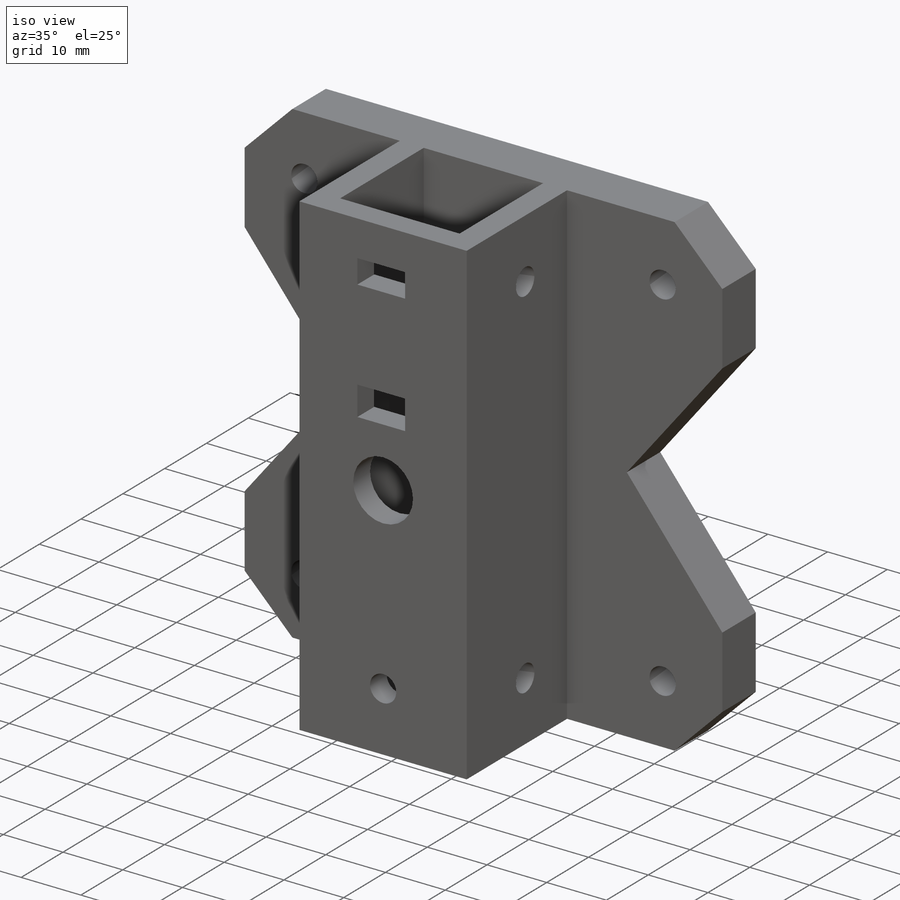
[diagram: iso view]
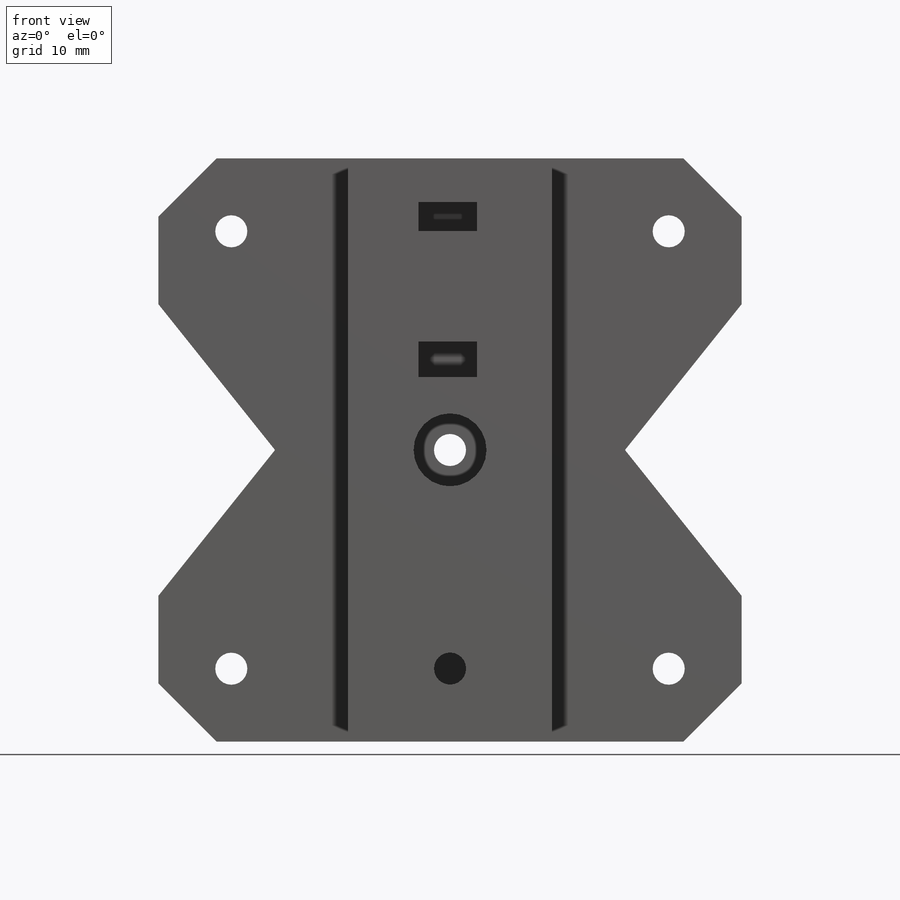
[diagram: front view]
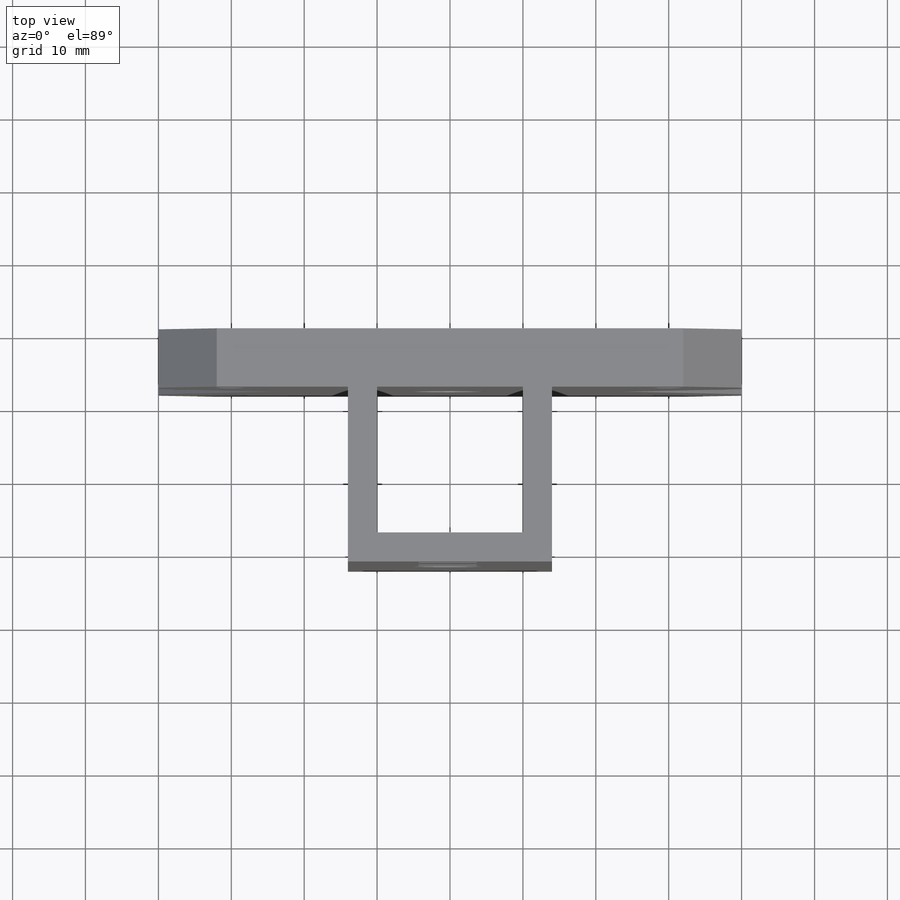
[diagram: top view]
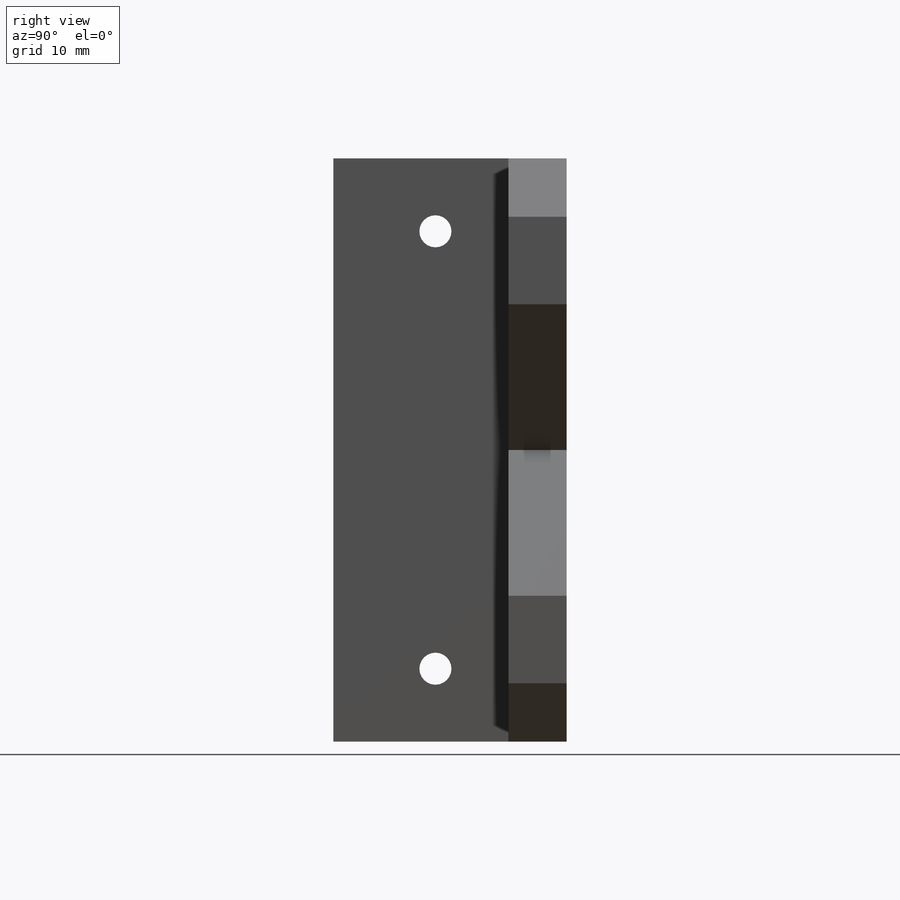
[diagram: right view]
SOLIDWORKS PART (.sldprt)
format: sldprt  version: not decoded by parser v0  size: 605,696 bytes
history: native  units: mm
features: sketch x12, hole x4, plane x3, extrude x2, cut_extrude x2, material x1, chamfer x1, move_body x1 (+9 scaffold rows collapsed; 1 parser-record rows omitted)
feature tree (36):
  scaffold x9  (default folders/planes/origin — collapsed)
  material  "Matériau <non spécifié>"
  plane  "Plan de face"
  plane  "Plan de dessus"
  plane  "Plan de droite"
  sketch  "Esquisse1"  dims[c1.D1=~186.70041mm c1.D2=~217.669672mm c2.D1=80.0mm c2.D2=80.0mm]
  extrude  "Boss.-Extru.1"  Depth=8mm
  sketch  "Esquisse2"  dims[c1.D1=~12.731298mm c1.D2=~12.659522mm c2.D1=20.0mm c2.D2=20.0mm c2.D3=4.0mm]
  extrude  "Boss.-Extru.2"  [1 undecoded]
  hole  "Dégagement M41"  Diameter=4.4mm Depth=32mm
  sketch  "Esquisse5"  dims[c1.D1=10.0mm c1.D2=~10.025641mm c2.D2=90.0deg c3.D2=10.0mm c3.D3=10.0mm c3.D4=10.0mm]
  sketch  "Esquisse4"  dims[hole-wizard template sketch: 59 standard entries collapsed; hole parameters kept: c18.Diamètre du perçage jusqu'au prochain=4.4mm c18.Profondeur du perçage jusqu'au prochain=32.0mm]
  hole  "Dégagement M42"  Diameter=4.4mm Depth=54mm
  sketch  "Esquisse7"  dims[D1=14.0mm D2=10.0mm D3=10.0mm]
  sketch  "Esquisse8"  dims[hole-wizard template sketch: 59 standard entries collapsed; hole parameters kept: c18.Diamètre du perçage jusqu'au prochain=4.4mm c18.Profondeur du perçage jusqu'au prochain=54.0mm]
  hole  "Dégagement M101"  Diameter=10mm Depth=28mm
  sketch  "Esquisse10"
  sketch  "Esquisse9"  dims[hole-wizard template sketch: 46 standard entries collapsed; hole parameters kept: c15.Diamètre du perçage=10.0mm c15.Profondeur du perçage=28.0mm c15.D3=~14.816244mm c15.Angle de pointe=180.0deg]
  hole  "Dégagement M43"  Diameter=4.4mm Depth=5mm
  sketch  "Esquisse12"  dims[D1=10.0mm]
  sketch  "Esquisse11"  dims[hole-wizard template sketch: 47 standard entries collapsed; hole parameters kept: c15.Profondeur du perçage=5.0mm c15.D3=~14.816244mm c15.Angle de pointe=180.0deg]
  sketch  "Esquisse13"  dims[c1.D1=~5.09901mm c1.D2=~8.029954mm c2.D1=~7.020306mm c2.D2=~9.343256mm c3.D1=6.0mm c3.D2=~15.144967mm c3.D3=~4.898494mm c3.D4=4.0mm c3.D5=8.0mm]
  cut_extrude  "Enlèv. mat.-Extru.1"  Depth=4mm
  sketch  "Esquisse14"  dims[D1=16.0mm D2=40.0mm D3=~53.029876mm]
  cut_extrude  "Enlèv. mat.-Extru.2"  [1 undecoded]
  chamfer  "Chanfrein2"  Distance=6mm Angle=45deg
  parser-record x1  (decoder bookkeeping rows leaked as tree rows — omitted from the tree; the rows remain in map.json)
  move_body  "Corps-Déplacer/Copier1"
decode coverage: 18 of 22 modeling features carry decoded parameters
note: ~ marks probable driven/reference dimensions
note: 2 parameter values undecoded
summary: Diameter pulled from absorbed wizard sketch
note: suppression state not decoded; provenance and decode notes live in map.json
